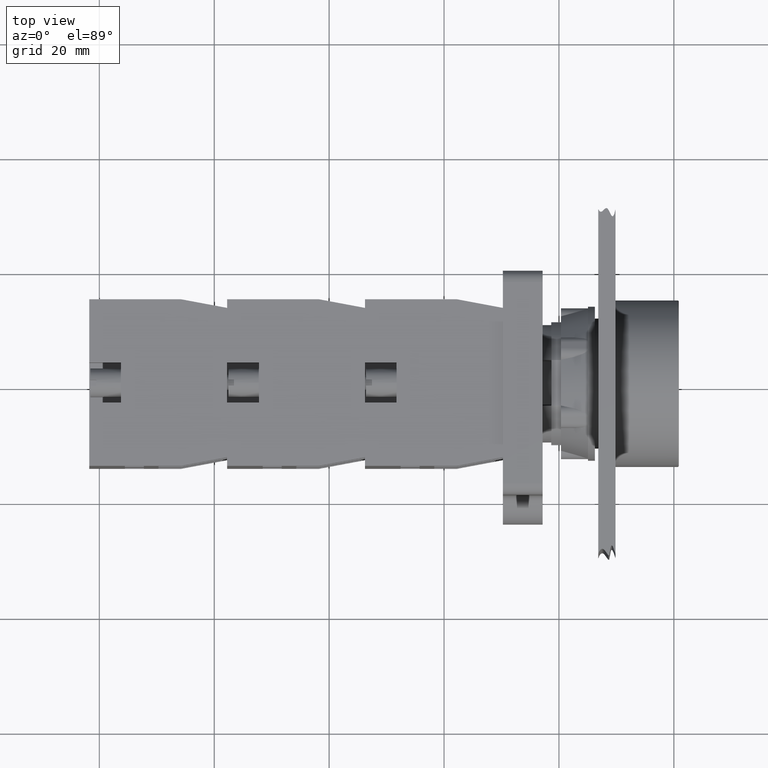
[diagram: clean part render]
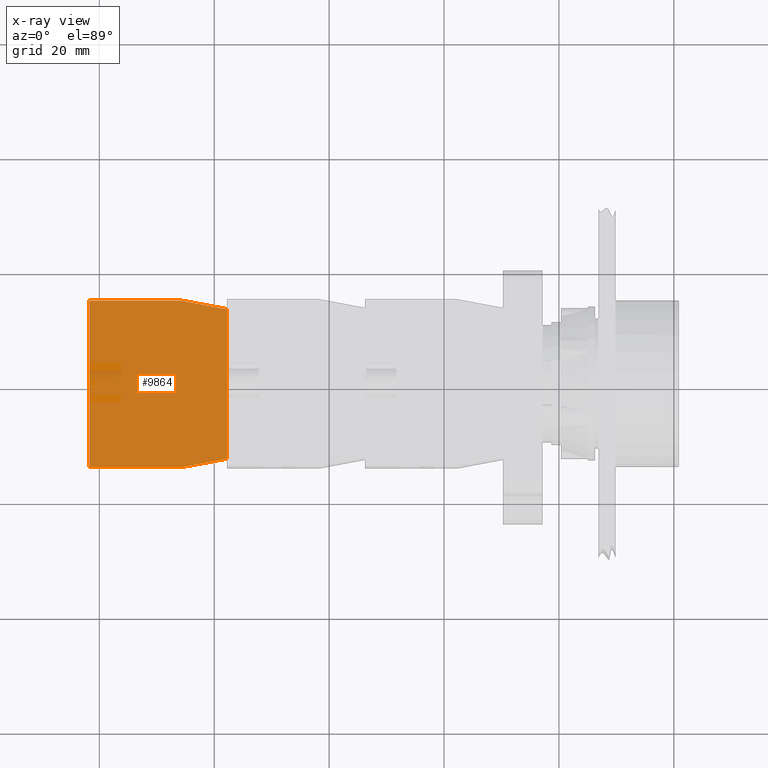
[diagram: x-ray — body ghosted, one internal face saturated and labeled with its STEP entity id]
A machine part, top view, then the same camera in x-ray: the body is ghosted and one INTERNAL B-rep face — a face not visible from any outside direction — is saturated and labeled: STEP entity #9864.
In plain terms, the highlighted planar face has unit normal (-0, 0, -1).
Its self-contained STEP definition (entity closure, byte-faithful):
#8169=CARTESIAN_POINT('',(-44.936741828918471,23.797073323279623,0.0));
#8170=VERTEX_POINT('',#8169);
#8177=CARTESIAN_POINT('',(-44.936741828918457,7.797073323279626,0.0));
#8178=VERTEX_POINT('',#8177);
#8179=CARTESIAN_POINT('',(-44.936741828918457,7.797073323279626,0.0));
#8180=DIRECTION('',(0.0,1.0,0.0));
#8181=VECTOR('',#8180,15.999999999999996);
#8182=LINE('',#8179,#8181);
#8183=EDGE_CURVE('',#8178,#8170,#8182,.T.);
#8360=CARTESIAN_POINT('',(-43.436741828918457,-0.202926676720380,0.0));
#8361=VERTEX_POINT('',#8360);
#8368=CARTESIAN_POINT('',(-17.436741828918457,-0.202926676720377,0.0));
#8369=VERTEX_POINT('',#8368);
#8370=CARTESIAN_POINT('',(-17.436741828918457,-0.202926676720377,0.0));
#8371=DIRECTION('',(-1.0,0.0,0.0));
#8372=VECTOR('',#8371,26.0);
#8373=LINE('',#8370,#8372);
#8374=EDGE_CURVE('',#8369,#8361,#8373,.T.);
#9718=CARTESIAN_POINT('',(-15.936741828918466,23.797073323279626,0.0));
#9719=VERTEX_POINT('',#9718);
#9726=CARTESIAN_POINT('',(-44.936741828918471,23.797073323279623,0.0));
#9727=DIRECTION('',(1.0,0.0,0.0));
#9728=VECTOR('',#9727,29.000000000000007);
#9729=LINE('',#9726,#9728);
#9730=EDGE_CURVE('',#8170,#9719,#9729,.T.);
#9766=CARTESIAN_POINT('',(-15.936741828918466,7.797073323279626,0.0));
#9767=VERTEX_POINT('',#9766);
#9774=CARTESIAN_POINT('',(-15.936741828918466,23.797073323279626,0.0));
#9775=DIRECTION('',(0.0,-1.0,0.0));
#9776=VECTOR('',#9775,16.0);
#9777=LINE('',#9774,#9776);
#9778=EDGE_CURVE('',#9719,#9767,#9777,.T.);
#9806=CARTESIAN_POINT('',(-15.936741828918466,7.797073323279626,0.0));
#9807=DIRECTION('',(-0.184288535050184,-0.982872186934322,0.0));
#9808=VECTOR('',#9807,8.139410298049855);
#9809=LINE('',#9806,#9808);
#9810=EDGE_CURVE('',#9767,#8369,#9809,.T.);
#9823=CARTESIAN_POINT('',(-43.436741828918457,-0.202926676720380,0.0));
#9824=DIRECTION('',(-0.184288535050185,0.982872186934322,0.0));
#9825=VECTOR('',#9824,8.139410298049860);
#9826=LINE('',#9823,#9825);
#9827=EDGE_CURVE('',#8361,#8178,#9826,.T.);
#9851=CARTESIAN_POINT('',(-30.436741828918464,12.124046801833057,0.0));
#9852=DIRECTION('',(0.0,0.0,1.0));
#9853=DIRECTION('',(1.0,0.0,0.0));
#9854=AXIS2_PLACEMENT_3D('',#9851,#9852,#9853);
#9855=PLANE('',#9854);
#9856=ORIENTED_EDGE('',*,*,#9730,.T.);
#9857=ORIENTED_EDGE('',*,*,#9778,.T.);
#9858=ORIENTED_EDGE('',*,*,#9810,.T.);
#9859=ORIENTED_EDGE('',*,*,#8374,.T.);
#9860=ORIENTED_EDGE('',*,*,#9827,.T.);
#9861=ORIENTED_EDGE('',*,*,#8183,.T.);
#9862=EDGE_LOOP('',(#9856,#9857,#9858,#9859,#9860,#9861));
#9863=FACE_OUTER_BOUND('',#9862,.T.);
#9864=ADVANCED_FACE('',(#9863),#9855,.F.);